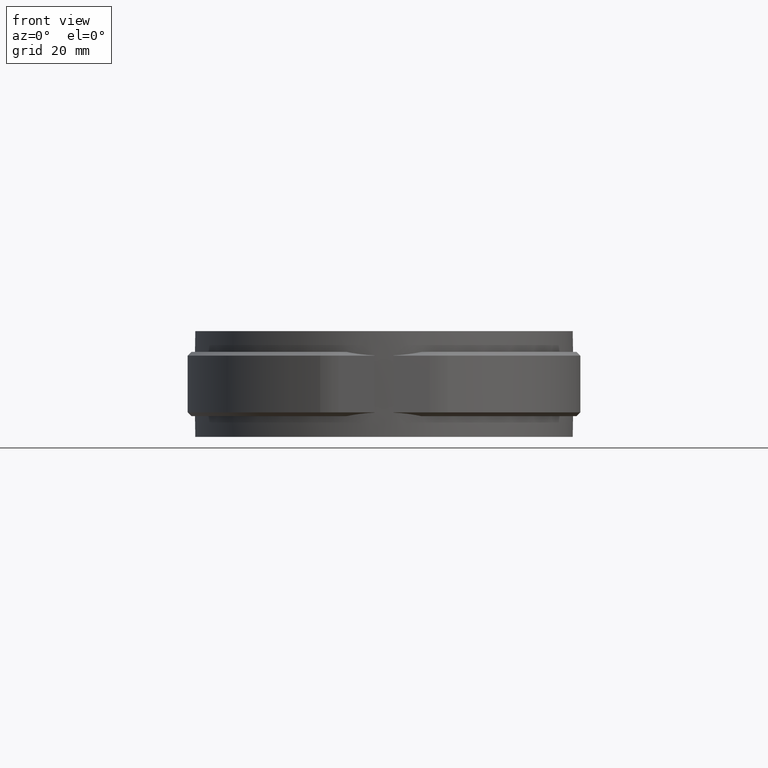
[diagram: clean part render]
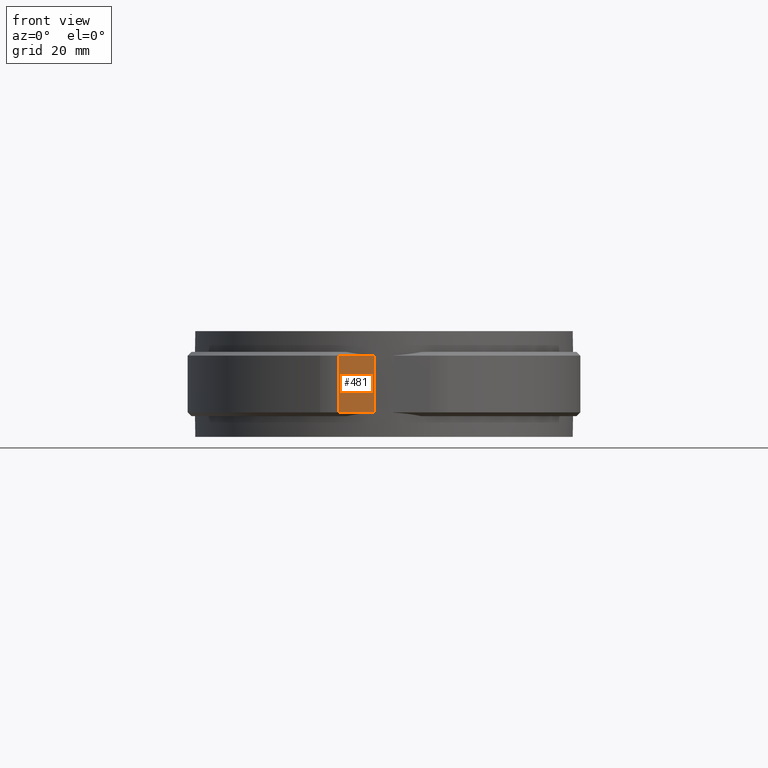
[diagram: same view with one face highlighted and labeled with its STEP entity id]
A machine part, front view. The second image highlights one B-rep face of the part: STEP entity #481.
In plain terms, the highlighted planar face has unit normal (-0, -1, 0).
Its self-contained STEP definition (entity closure, byte-faithful):
#481 = ADVANCED_FACE( '', ( #941 ), #942, .T. );
#941 = FACE_OUTER_BOUND( '', #2212, .T. );
#942 = PLANE( '', #2213 );
#2212 = EDGE_LOOP( '', ( #4395, #4396, #4397, #4398 ) );
#2213 = AXIS2_PLACEMENT_3D( '', #4399, #4400, #4401 );
#4395 = ORIENTED_EDGE( '', *, *, #6447, .T. );
#4396 = ORIENTED_EDGE( '', *, *, #6494, .T. );
#4397 = ORIENTED_EDGE( '', *, *, #6474, .F. );
#4398 = ORIENTED_EDGE( '', *, *, #6395, .T. );
#4399 = CARTESIAN_POINT( '', ( -12.0083304418225, -50.0500000000000, -8.50000000000000 ) );
#4400 = DIRECTION( '', ( -1.38777878078145E-017, -1.00000000000000, 0.000000000000000 ) );
#4401 = DIRECTION( '', ( -1.00000000000000, 1.38777878078145E-017, 0.000000000000000 ) );
#6395 = EDGE_CURVE( '', #7473, #7480, #7482, .T. );
#6447 = EDGE_CURVE( '', #7480, #7570, #7572, .T. );
#6474 = EDGE_CURVE( '', #7473, #7609, #7610, .T. );
#6494 = EDGE_CURVE( '', #7570, #7609, #7635, .T. );
#7473 = VERTEX_POINT( '', #10789 );
#7480 = VERTEX_POINT( '', #10798 );
#7482 = LINE( '', #10801, #10802 );
#7570 = VERTEX_POINT( '', #10925 );
#7572 = LINE( '', #10928, #10929 );
#7609 = VERTEX_POINT( '', #10989 );
#7610 = LINE( '', #10990, #10991 );
#7635 = LINE( '', #11031, #11032 );
#10789 = CARTESIAN_POINT( '', ( -12.0083304418225, -50.0500000000000, -7.50000000000000 ) );
#10798 = CARTESIAN_POINT( '', ( -2.50000000000000, -50.0500000000000, -7.50000000000000 ) );
#10801 = CARTESIAN_POINT( '', ( -2.50000000000000, -50.0500000000000, -7.50000000000000 ) );
#10802 = VECTOR( '', #12784, 1000.00000000000 );
#10925 = CARTESIAN_POINT( '', ( -2.50000000000000, -50.0500000000000, 7.50000000000001 ) );
#10928 = CARTESIAN_POINT( '', ( -2.50000000000000, -50.0500000000000, -8.50000000000000 ) );
#10929 = VECTOR( '', #12869, 1000.00000000000 );
#10989 = CARTESIAN_POINT( '', ( -12.0083304418225, -50.0500000000000, 7.50000000000001 ) );
#10990 = CARTESIAN_POINT( '', ( -12.0083304418225, -50.0500000000000, -8.50000000000000 ) );
#10991 = VECTOR( '', #12908, 1000.00000000000 );
#11031 = CARTESIAN_POINT( '', ( -12.0083304418225, -50.0500000000000, 7.50000000000000 ) );
#11032 = VECTOR( '', #12939, 1000.00000000000 );
#12784 = DIRECTION( '', ( 1.00000000000000, -1.38777878078145E-017, 0.000000000000000 ) );
#12869 = DIRECTION( '', ( 0.000000000000000, 0.000000000000000, 1.00000000000000 ) );
#12908 = DIRECTION( '', ( 0.000000000000000, 0.000000000000000, 1.00000000000000 ) );
#12939 = DIRECTION( '', ( -1.00000000000000, 1.38777878078145E-017, 0.000000000000000 ) );